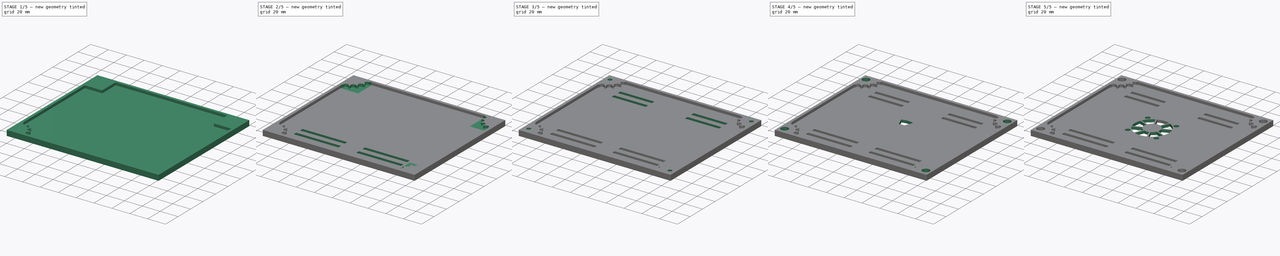
[diagram: build sequence overview — one tinted view per stage of 5, left to right]
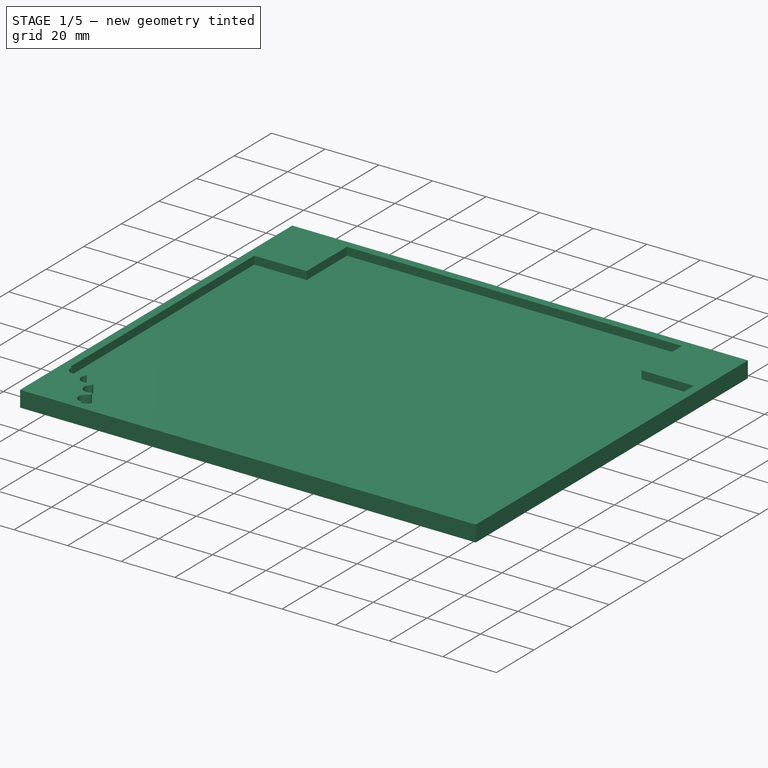
[diagram: stage 1 of 5 — iso view after this stage's code; geometry added in this stage tinted green]
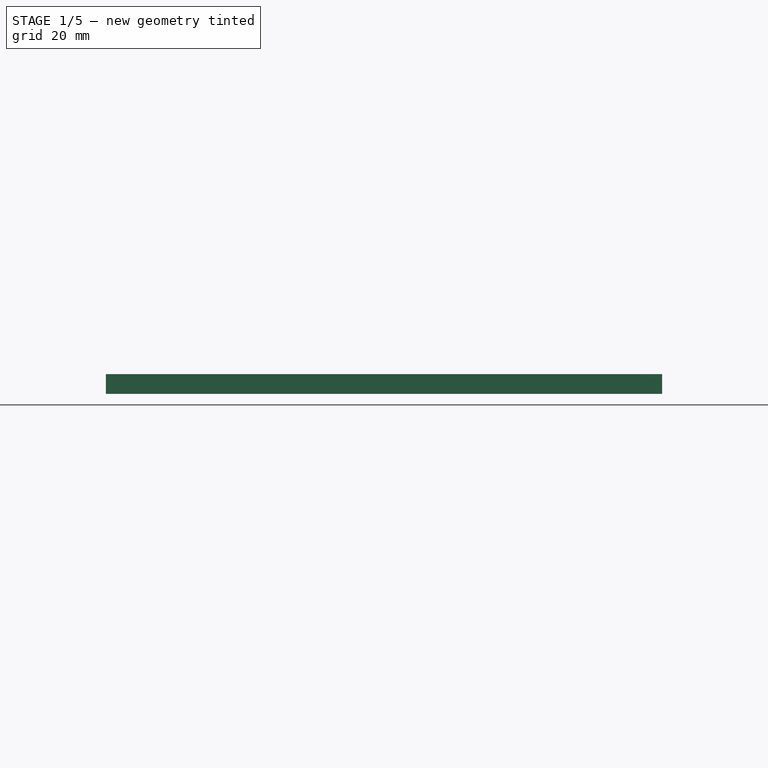
[diagram: stage 1 of 5 — front view after this stage's code; geometry added in this stage tinted green]
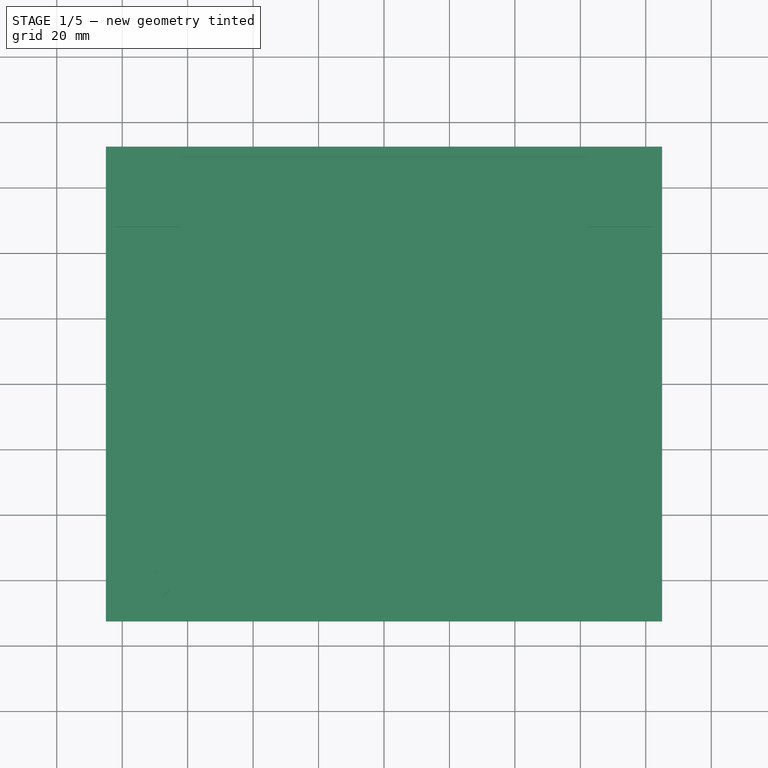
[diagram: stage 1 of 5 — top view after this stage's code; geometry added in this stage tinted green]
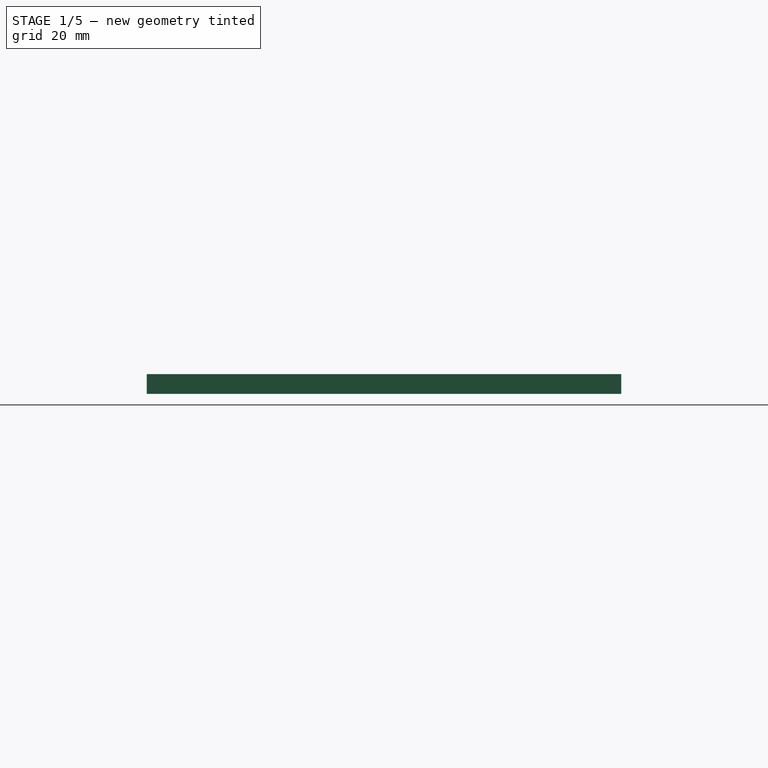
[diagram: stage 1 of 5 — right view after this stage's code; geometry added in this stage tinted green]
FCSTD DOCUMENT
Label: ElectronicEnclosureTopBlank
objects: PartDesign::Mirrored×10, Sketcher::SketchObject×9, PartDesign::Pocket×8, PartDesign::MultiTransform×6, PartDesign::LinearPattern×2, PartDesign::Pad×1, PartDesign::PolarPattern×1, Part::Feature×1
note: 47 computed .brp shape members not serialized (recipe doc carries the construction recipe); baked Part::Feature solids carry a one-line shape summary decoded from their .brp

FEATURE [Sketcher::SketchObject] Sketch
  sketch-geometry (4):
    g0: LineSegment StartX=-85 StartY=72.5 StartZ=0 EndX=85 EndY=72.5 EndZ=0
    g1: LineSegment StartX=85 StartY=72.5 StartZ=0 EndX=85 EndY=-72.5 EndZ=0
    g2: LineSegment StartX=85 StartY=-72.5 StartZ=0 EndX=-85 EndY=-72.5 EndZ=0
    g3: LineSegment StartX=-85 StartY=-72.5 StartZ=0 EndX=-85 EndY=72.5 EndZ=0
  constraints (11):
    c: Coincident(g0,g1)
    c: Coincident(g1,g2)
    c: Coincident(g2,g3)
    c: Coincident(g3,g0)
    c: Horizontal(g0)
    c: Horizontal(g2)
    c: Vertical(g1)
    c: Vertical(g3)
    c: Symmetric(g2,g0,g-1)
    c: DistanceX(g2) = -170
    c: DistanceY(g1) = -145
FEATURE [PartDesign::Pad] Pad
  Length = 6
  Length2 = 100
  Sketch = -> Sketch
  Type = 0
FEATURE [Sketcher::SketchObject] Sketch001
  ExternalGeometry = -> [Pad]
  Placement = pos=(0,0,6) rot=(0,0,1;0rad)
  Support = -> Pad [Face6]
  sketch-geometry (12):
    g0: LineSegment StartX=-62.5 StartY=69.5 StartZ=0 EndX=62.5 EndY=69.5 EndZ=0
    g1: LineSegment StartX=82 StartY=48 StartZ=0 EndX=82 EndY=-48 EndZ=0
    g2: LineSegment StartX=62.5 StartY=-69.5 StartZ=0 EndX=-62.5 EndY=-69.5 EndZ=0
    g3: LineSegment StartX=-82 StartY=-48 StartZ=0 EndX=-82 EndY=48 EndZ=0
    g4: LineSegment StartX=-82 StartY=-48 StartZ=0 EndX=-62.5 EndY=-48 EndZ=0
    g5: LineSegment StartX=-62.5 StartY=-48 StartZ=0 EndX=-62.5 EndY=-69.5 EndZ=0
    g6: LineSegment StartX=-62.5 StartY=69.5 StartZ=0 EndX=-62.5 EndY=48 EndZ=0
    g7: LineSegment StartX=-62.5 StartY=48 StartZ=0 EndX=-82 EndY=48 EndZ=0
    g8: LineSegment StartX=82 StartY=48 StartZ=0 EndX=62.5 EndY=48 EndZ=0
    g9: LineSegment StartX=62.5 StartY=48 StartZ=0 EndX=62.5 EndY=69.5 EndZ=0
    g10: LineSegment StartX=62.5 StartY=-48 StartZ=0 EndX=82 EndY=-48 EndZ=0
    g11: LineSegment StartX=62.5 StartY=-69.5 StartZ=0 EndX=62.5 EndY=-48 EndZ=0
  constraints (36):
    c: Horizontal(g0)
    c: Horizontal(g2)
    c: Vertical(g1)
    c: Vertical(g3)
    c: Coincident(g4,g5)
    c: Horizontal(g4)
    c: Vertical(g5)
    c: Coincident(g6,g7)
    c: Horizontal(g7)
    c: Vertical(g6)
    c: Coincident(g8,g9)
    c: Horizontal(g8)
    c: Vertical(g9)
    c: Coincident(g11,g10)
    c: Horizontal(g10)
    c: Vertical(g11)
    c: Coincident(g0,g9)
    c: Coincident(g1,g8)
    c: Coincident(g0,g6)
    c: Coincident(g3,g7)
    c: Coincident(g3,g4)
    c: Coincident(g2,g5)
    c: Coincident(g2,g11)
    c: Coincident(g1,g10)
    c: Equal(g6,g9)
    c: Equal(g9,g11)
    c: Equal(g11,g5)
    c: Equal(g7,g4)
    c: Equal(g4,g10)
    c: Equal(g10,g8)
    c: Symmetric(g0,g0,g-2)
    c: Symmetric(g3,g3,g-1)
    c: DistanceX(g3,g-3) = -3
    c: DistanceY(g0,g-3) = 3
    c: DistanceY(g-3,g3) = 24.5
    c: DistanceX(g-3,g0) = 22.5
FEATURE [PartDesign::Pocket] Pocket
  Length = 3
  Sketch = -> Sketch001
  Type = 0
FEATURE [Sketcher::SketchObject] Sketch002
  ExternalGeometry = -> [Pocket]
  Placement = pos=(0,0,6) rot=(0,0,1;0rad)
  Support = -> Pocket [Face5]
  sketch-geometry (25):
    g0: LineSegment [constr] StartX=-78.5695 StartY=-50.9332 StartZ=0 EndX=-72.2837 EndY=-54.1542 EndZ=0
    g1: LineSegment [constr] StartX=-72.2837 StartY=-54.1542 StartZ=0 EndX=-67.5596 EndY=-59.4048 EndZ=0
    g2: LineSegment [constr] StartX=-67.5596 StartY=-59.4048 StartZ=0 EndX=-65.0183 EndY=-65.9948 EndZ=0
    g3: LineSegment [constr] StartX=-75.4266 StartY=-52.5437 StartZ=0 EndX=-84.1628 EndY=-69.5926 EndZ=0
    g4: LineSegment [constr] StartX=-66.2889 StartY=-62.6998 StartZ=0 EndX=-84.1628 EndY=-69.5926 EndZ=0
    g5: ArcOfCircle CenterX=-78.5695 CenterY=-50.9332 CenterZ=0 NormalX=0 NormalY=0 NormalZ=1 Radius=2.68 StartAngle=2.85036 EndAngle=5.99195
    g6: ArcOfCircle CenterX=-72.2837 CenterY=-54.1542 CenterZ=0 NormalX=0 NormalY=0 NormalZ=1 Radius=2.68 StartAngle=2.48576 EndAngle=5.62735
    g7: ArcOfCircle CenterX=-67.5596 CenterY=-59.4048 CenterZ=0 NormalX=0 NormalY=0 NormalZ=1 Radius=2.68 StartAngle=2.12116 EndAngle=5.26275
    g8: ArcOfCircle CenterX=-65.0183 CenterY=-65.9948 CenterZ=0 NormalX=0 NormalY=0 NormalZ=1 Radius=2.68 StartAngle=1.75656 EndAngle=4.89815
    g9: LineSegment [constr] StartX=-65.5132 StartY=-63.3609 StartZ=0 EndX=-64.5233 EndY=-68.6287 EndZ=0
    g10: LineSegment [constr] StartX=-68.9612 StartY=-57.1205 StartZ=0 EndX=-66.158 EndY=-61.6891 EndZ=0
    g11: LineSegment [constr] StartX=-74.4077 StartY=-52.5199 StartZ=0 EndX=-70.1597 EndY=-55.7885 EndZ=0
    g12: LineSegment [constr] StartX=-81.1366 StartY=-50.1637 StartZ=0 EndX=-76.0023 EndY=-51.7027 EndZ=0
    g13: LineSegment [constr] StartX=-76.0023 StartY=-51.7027 StartZ=0 EndX=-74.4077 EndY=-52.5199 EndZ=0
    g14: LineSegment [constr] StartX=-70.1597 StartY=-55.7885 StartZ=0 EndX=-68.9612 EndY=-57.1205 EndZ=0
    g15: LineSegment [constr] StartX=-66.158 StartY=-61.6891 StartZ=0 EndX=-65.5132 EndY=-63.3609 EndZ=0
    g16: ArcOfCircle CenterX=-75.4565 CenterY=-52.602 CenterZ=0 NormalX=0 NormalY=0 NormalZ=1 Radius=1.052 StartAngle=0.0781836 EndAngle=2.11634
    g17: ArcOfCircle CenterX=-69.9704 CenterY=-56.8233 CenterZ=0 NormalX=0 NormalY=0 NormalZ=1 Radius=1.052 StartAngle=5.99677 EndAngle=8.03492
    g18: ArcOfCircle CenterX=-66.3501 CenterY=-62.7234 CenterZ=0 NormalX=0 NormalY=0 NormalZ=1 Radius=1.052 StartAngle=5.63217 EndAngle=7.67032
    g19: ArcOfCircle CenterX=-84.1628 CenterY=-69.5926 CenterZ=0 NormalX=0 NormalY=0 NormalZ=1 Radius=19.6631 StartAngle=1.41628 EndAngle=1.46058
    g20: ArcOfCircle CenterX=-84.1628 CenterY=-69.5926 CenterZ=0 NormalX=0 NormalY=0 NormalZ=1 Radius=19.6631 StartAngle=0.00470771 EndAngle=0.0490408
    g21: LineSegment StartX=-82 StartY=-50.0487 StartZ=0 EndX=-82 EndY=-48 EndZ=0
    g22: LineSegment StartX=-82 StartY=-48 StartZ=0 EndX=-62.5 EndY=-48 EndZ=0
    g23: LineSegment StartX=-62.5 StartY=-48 StartZ=0 EndX=-62.5 EndY=-69.5 EndZ=0
    g24: LineSegment StartX=-64.4999 StartY=-69.5 StartZ=0 EndX=-62.5 EndY=-69.5 EndZ=0
  constraints (69):
    c: Coincident(g0,g1)
    c: Coincident(g1,g2)
    c: Equal(g2,g1)
    c: Equal(g1,g0)
    c: Angle(g0,g1) = 2.77699
    c: Angle(g1,g2) = 2.77699
    c: Distance(g1) = 7.063
    c: Symmetric(g0,g0,g3)
    c: Symmetric(g2,g2,g4)
    c: Coincident(g4,g3)
    c: Perpendicular(g3,g0)
    c: Coincident(g5,g0)
    c: Radius(g5) = 2.68
    c: Coincident(g6,g0)
    c: Coincident(g7,g1)
    c: Coincident(g8,g2)
    c: Equal(g7,g8)
    c: Equal(g8,g6)
    c: Equal(g6,g5)
    c: Equal(g4,g3)
    c: PointOnObject(g2,g9)
    c: PointOnObject(g1,g10)
    c: PointOnObject(g0,g11)
    c: PointOnObject(g0,g12)
    c: Coincident(g8,g9)
    c: Coincident(g8,g9)
    c: Coincident(g7,g10)
    c: Coincident(g7,g10)
    c: Coincident(g6,g11)
    c: Coincident(g6,g11)
    c: Coincident(g5,g12)
    c: Coincident(g5,g12)
    c: Coincident(g13,g5)
    c: Coincident(g13,g6)
    c: Coincident(g14,g6)
    c: Coincident(g14,g7)
    c: Coincident(g15,g7)
    c: Coincident(g15,g8)
    c: Equal(g13,g14)
    c: Equal(g14,g15)
    c: Parallel(g14,g1)
    c: Parallel(g15,g2)
    c: Equal(g16,g17)
    c: Equal(g17,g18)
    c: Coincident(g18,g7)
    c: Coincident(g18,g8)
    c: Radius(g18) = 1.052
    c: Coincident(g17,g6)
    c: Coincident(g17,g7)
    c: Coincident(g16,g5)
    c: Coincident(g16,g6)
    c: DistanceX(g-3,g3) = 0.83722
    c: DistanceY(g-3,g3) = 2.90743
    c: Coincident(g19,g3)
    c: Coincident(g19,g5)
    c: Coincident(g20,g3)
    c: Coincident(g20,g8)
    c: Coincident(g19,g21)
    c: Vertical(g21)
    c: Coincident(g22,g23)
    c: Vertical(g23)
    c: Coincident(g24,g20)
    c: Coincident(g24,g23)
    c: Horizontal(g24)
    c: Horizontal(g22)
    c: Coincident(g22,g21)
    c: Coincident(g23,g-5)
    c: Coincident(g21,g-4)
    c: Distance(g19,g5) = 0.871
FEATURE [PartDesign::Pocket] Pocket001
  Length = 3
  Sketch = -> Sketch002
  Type = 0
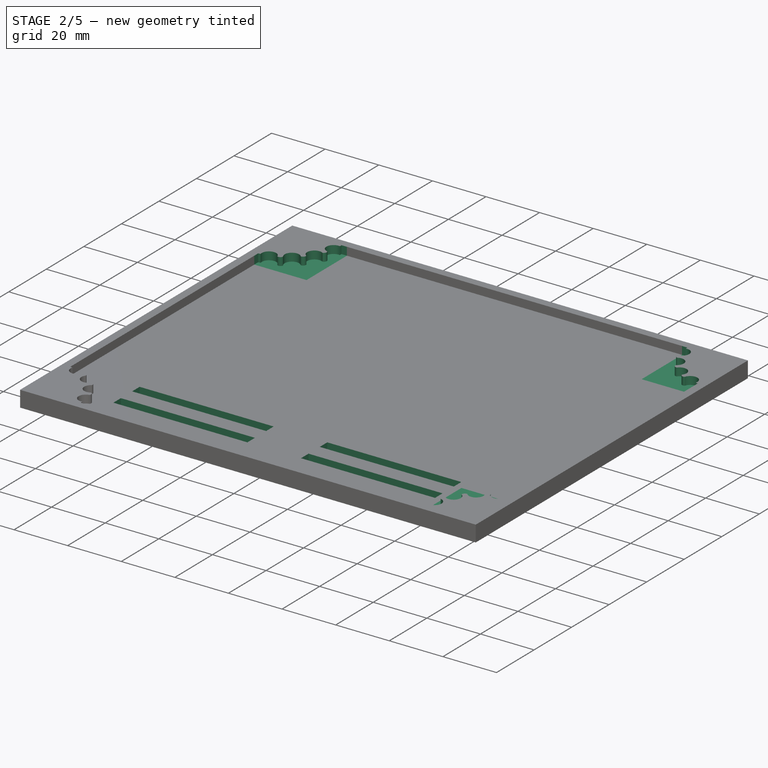
[diagram: stage 2 of 5 — iso view after this stage's code; geometry added in this stage tinted green]
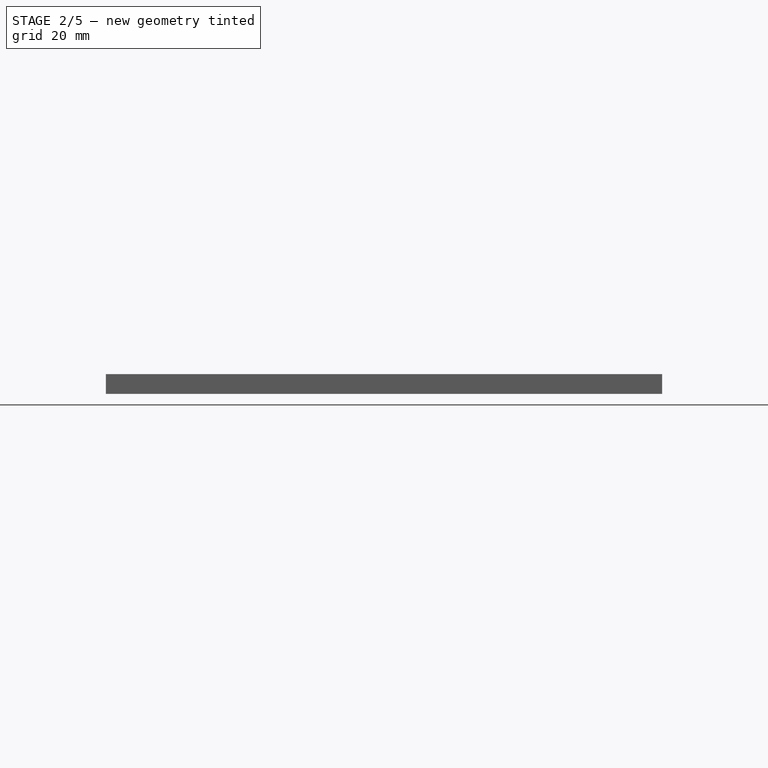
[diagram: stage 2 of 5 — front view after this stage's code; geometry added in this stage tinted green]
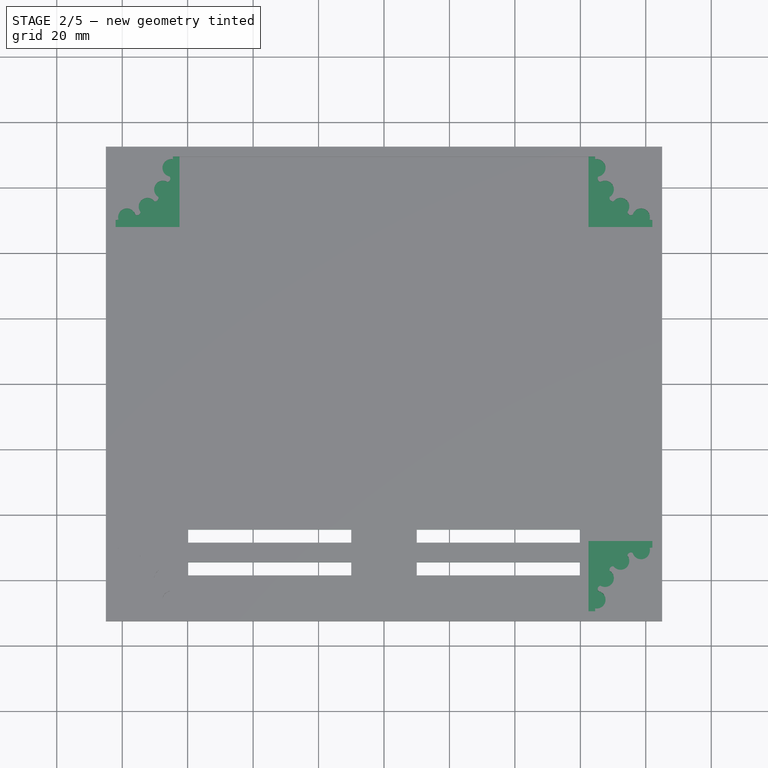
[diagram: stage 2 of 5 — top view after this stage's code; geometry added in this stage tinted green]
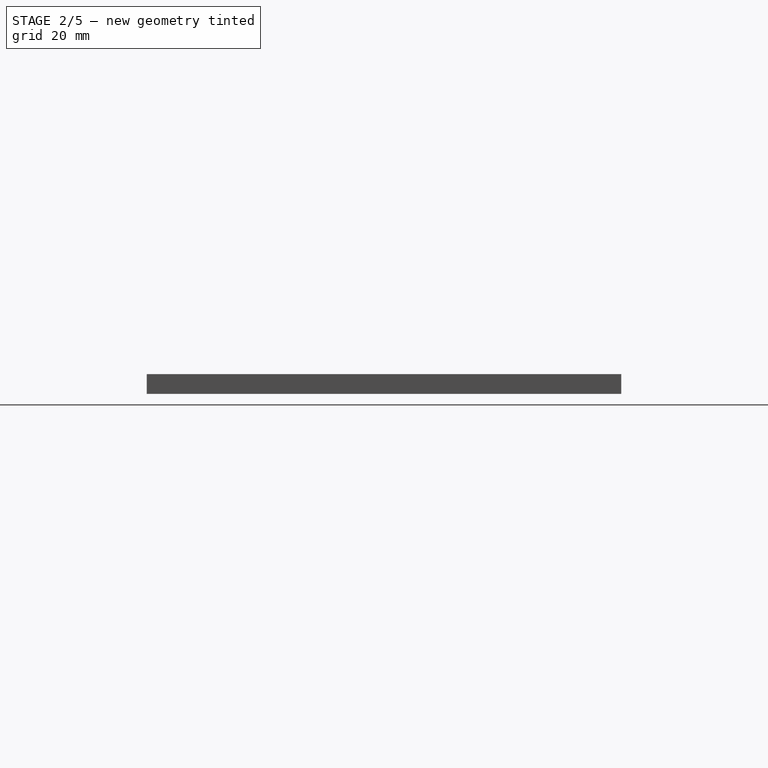
[diagram: stage 2 of 5 — right view after this stage's code; geometry added in this stage tinted green]
FEATURE [PartDesign::Mirrored] Mirrored
  StdMirrorPlane = YZ
FEATURE [PartDesign::Mirrored] Mirrored001
  StdMirrorPlane = XZ
FEATURE [PartDesign::MultiTransform] MultiTransform
  Originals = -> [Pocket001]
  Transformations = -> [Mirrored,Mirrored001]
FEATURE [Sketcher::SketchObject] Sketch003
  ExternalGeometry = -> [MultiTransform]
  Placement = pos=(0,0,3) rot=(0,0,1;0rad)
  Support = -> MultiTransform [Face55]
  sketch-geometry (4):
    g0: LineSegment StartX=-60 StartY=-58.5 StartZ=0 EndX=-10 EndY=-58.5 EndZ=0
    g1: LineSegment StartX=-10 StartY=-58.5 StartZ=0 EndX=-10 EndY=-54.5 EndZ=0
    g2: LineSegment StartX=-10 StartY=-54.5 StartZ=0 EndX=-60 EndY=-54.5 EndZ=0
    g3: LineSegment StartX=-60 StartY=-54.5 StartZ=0 EndX=-60 EndY=-58.5 EndZ=0
  constraints (12):
    c: Coincident(g0,g1)
    c: Coincident(g1,g2)
    c: Coincident(g2,g3)
    c: Coincident(g3,g0)
    c: Horizontal(g0)
    c: Horizontal(g2)
    c: Vertical(g1)
    c: Vertical(g3)
    c: DistanceX(g2) = -50
    c: DistanceY(g1) = 4
    c: DistanceY(g-3,g0) = 11
    c: DistanceX(g0) = -10
FEATURE [PartDesign::Pocket] Pocket002
  Length = 5
  Sketch = -> Sketch003
  Type = 1
FEATURE [PartDesign::LinearPattern] LinearPattern
  Direction = -> Pocket002 [Edge7]
  Length = 10
  Occurrences = 2
FEATURE [PartDesign::Mirrored] Mirrored002
  StdMirrorPlane = YZ
FEATURE [PartDesign::MultiTransform] MultiTransform001
  Originals = -> [Pocket002]
  Transformations = -> [LinearPattern,Mirrored002]
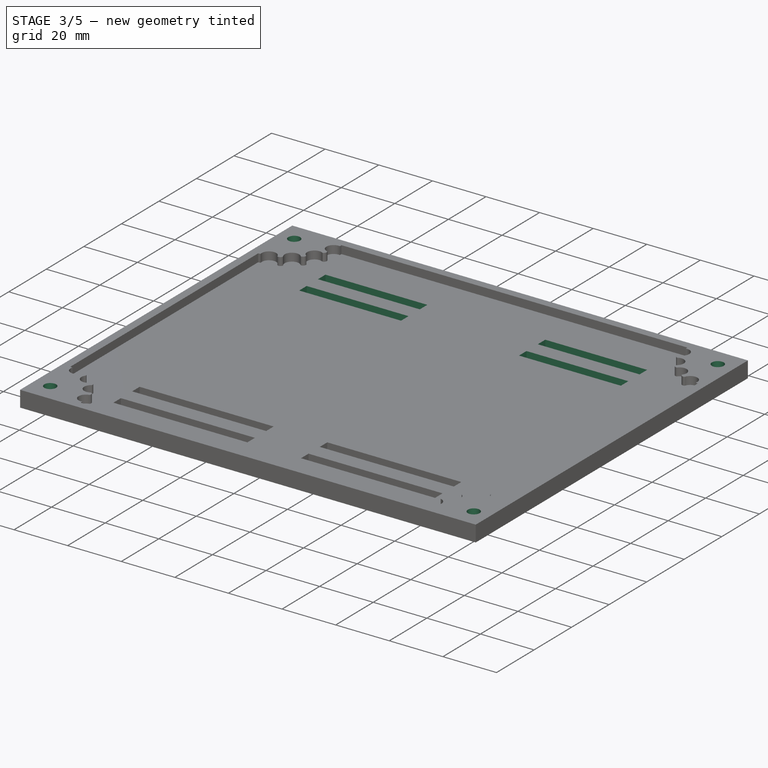
[diagram: stage 3 of 5 — iso view after this stage's code; geometry added in this stage tinted green]
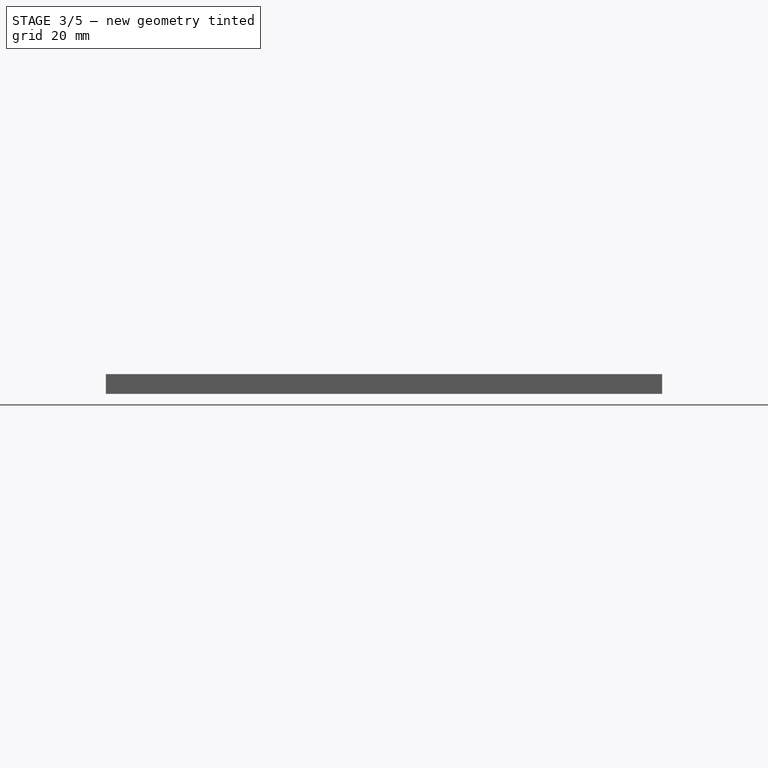
[diagram: stage 3 of 5 — front view after this stage's code; geometry added in this stage tinted green]
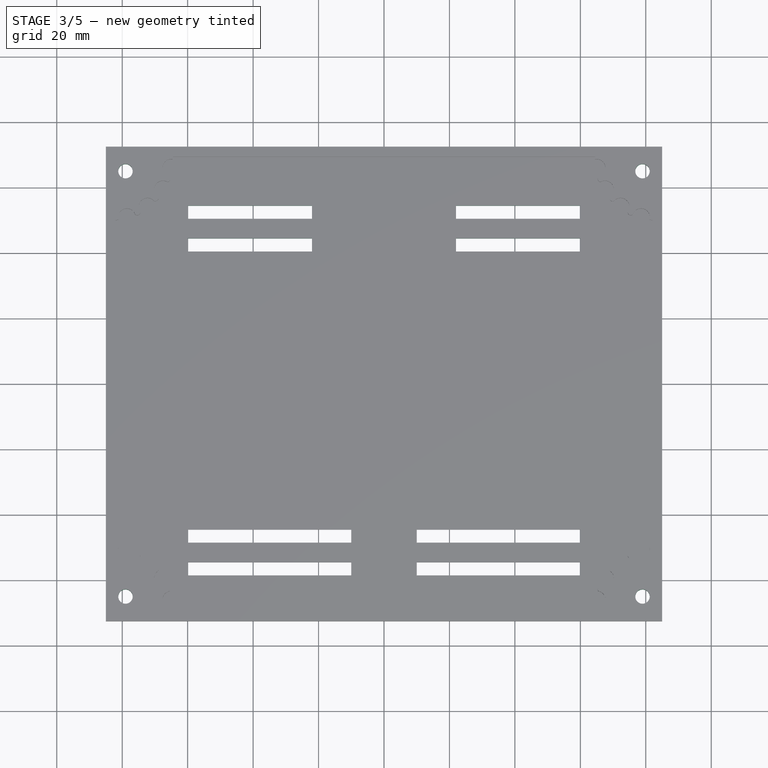
[diagram: stage 3 of 5 — top view after this stage's code; geometry added in this stage tinted green]
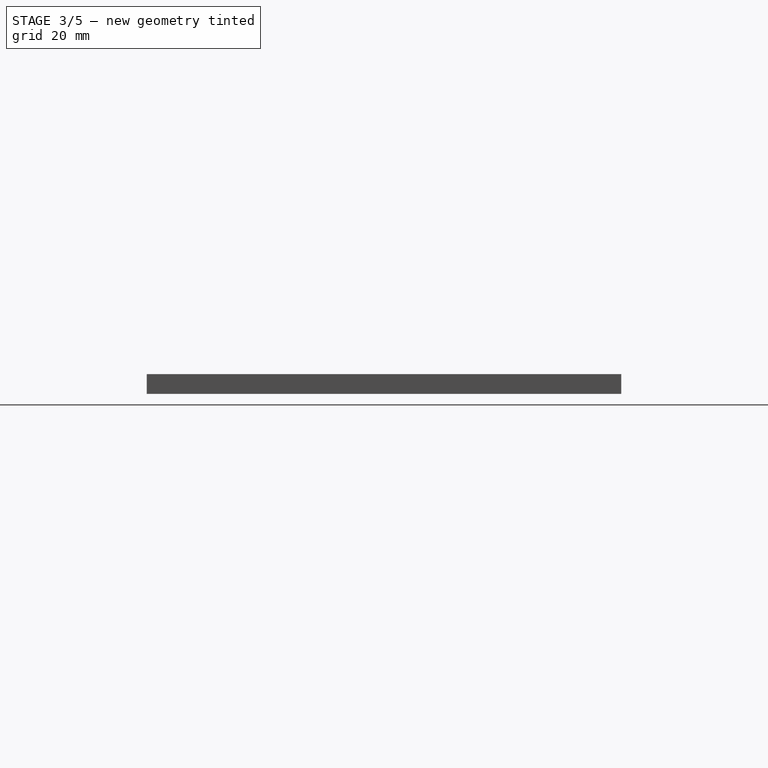
[diagram: stage 3 of 5 — right view after this stage's code; geometry added in this stage tinted green]
FEATURE [Sketcher::SketchObject] Sketch004
  ExternalGeometry = -> [MultiTransform001]
  Placement = pos=(0,0,3) rot=(0,0,1;0rad)
  Support = -> MultiTransform001 [Face71]
  sketch-geometry (4):
    g0: LineSegment StartX=-60 StartY=54.5 StartZ=0 EndX=-22 EndY=54.5 EndZ=0
    g1: LineSegment StartX=-22 StartY=54.5 StartZ=0 EndX=-22 EndY=50.5 EndZ=0
    g2: LineSegment StartX=-22 StartY=50.5 StartZ=0 EndX=-60 EndY=50.5 EndZ=0
    g3: LineSegment StartX=-60 StartY=50.5 StartZ=0 EndX=-60 EndY=54.5 EndZ=0
  constraints (12):
    c: Coincident(g0,g1)
    c: Coincident(g1,g2)
    c: Coincident(g2,g3)
    c: Coincident(g3,g0)
    c: Horizontal(g0)
    c: Horizontal(g2)
    c: Vertical(g1)
    c: Vertical(g3)
    c: DistanceX(g0) = 38
    c: DistanceY(g3) = 4
    c: PointOnObject(g-3,g3)
    c: DistanceY(g0,g-4) = 15
FEATURE [PartDesign::Pocket] Pocket003
  Length = 5
  Sketch = -> Sketch004
  Type = 1
FEATURE [PartDesign::LinearPattern] LinearPattern001
  Direction = -> Pocket003 [Edge7]
  Length = 10
  Occurrences = 2
  Reversed = true
FEATURE [PartDesign::Mirrored] Mirrored003
  StdMirrorPlane = YZ
FEATURE [PartDesign::MultiTransform] MultiTransform002
  Originals = -> [Pocket003]
  Transformations = -> [LinearPattern001,Mirrored003]
FEATURE [Sketcher::SketchObject] Sketch005
  ExternalGeometry = -> [MultiTransform002]
  Placement = pos=(0,0,6) rot=(0,0,1;0rad)
  Support = -> MultiTransform002 [Face5]
  sketch-geometry (1):
    g0: Circle CenterX=-79 CenterY=-65 CenterZ=0 NormalX=0 NormalY=0 NormalZ=1 Radius=2.2
  constraints (3):
    c: Radius(g0) = 2.2
    c: DistanceX(g-3,g0) = 6
    c: DistanceY(g-3,g0) = 7.5
FEATURE [PartDesign::Pocket] Pocket004
  Length = 5
  Sketch = -> Sketch005
  Type = 1
FEATURE [PartDesign::Mirrored] Mirrored004
  StdMirrorPlane = YZ
FEATURE [PartDesign::Mirrored] Mirrored005
  StdMirrorPlane = XZ
FEATURE [PartDesign::MultiTransform] MultiTransform003
  Originals = -> [Pocket004]
  Transformations = -> [Mirrored004,Mirrored005]
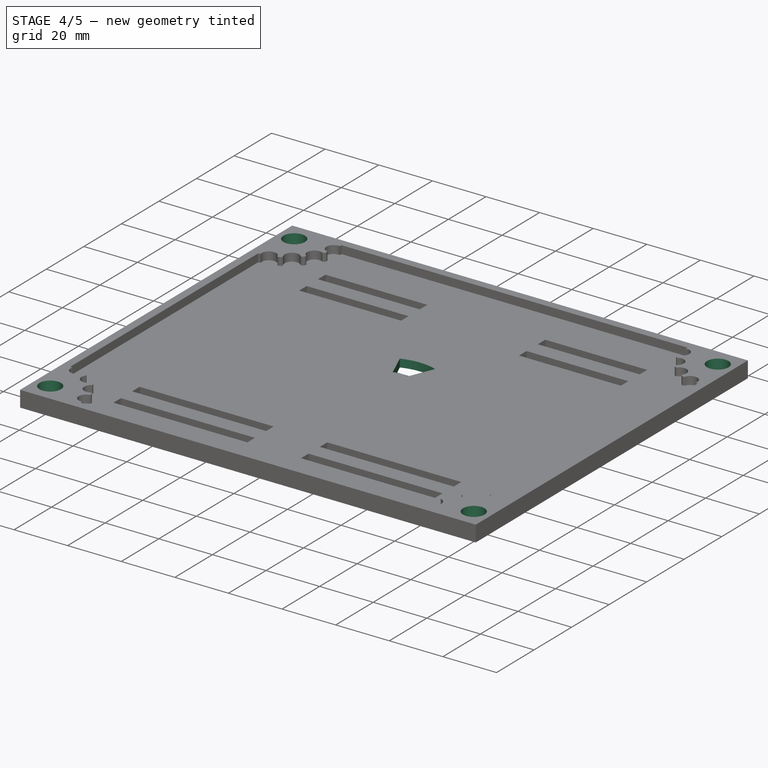
[diagram: stage 4 of 5 — iso view after this stage's code; geometry added in this stage tinted green]
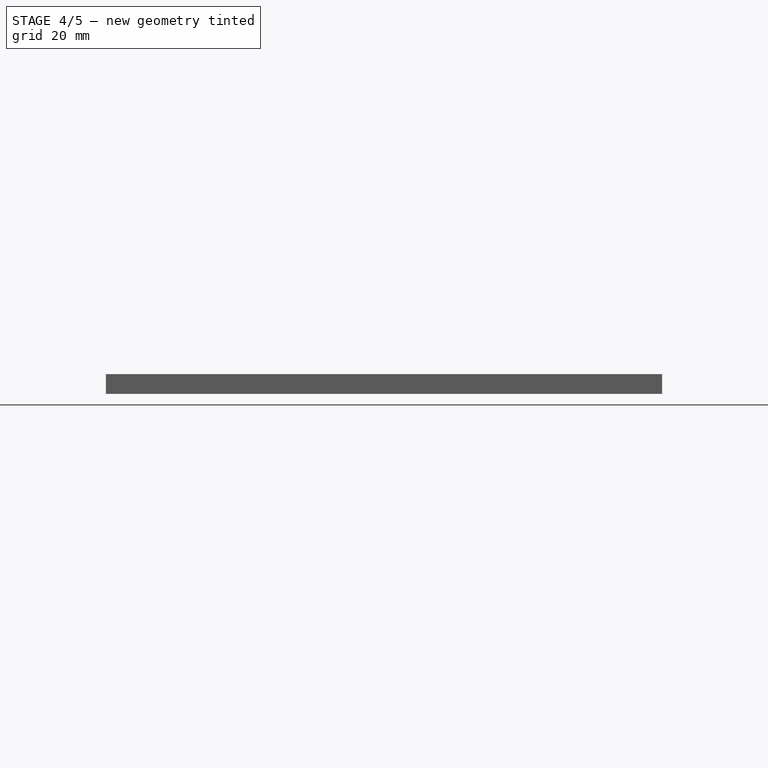
[diagram: stage 4 of 5 — front view after this stage's code; geometry added in this stage tinted green]
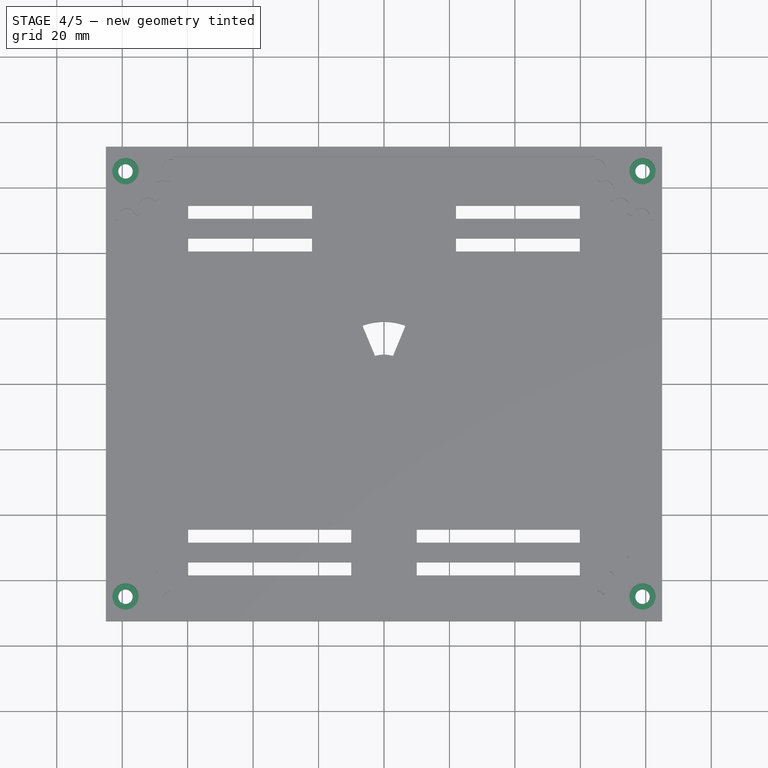
[diagram: stage 4 of 5 — top view after this stage's code; geometry added in this stage tinted green]
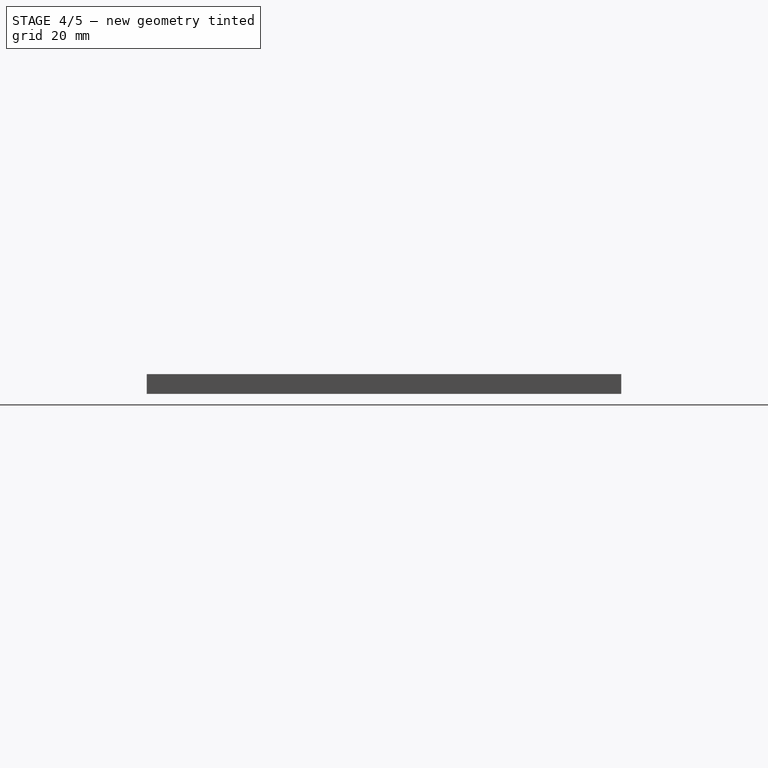
[diagram: stage 4 of 5 — right view after this stage's code; geometry added in this stage tinted green]
FEATURE [Sketcher::SketchObject] Sketch006
  ExternalGeometry = -> [MultiTransform003]
  Placement = pos=(0,0,6) rot=(0,0,1;0rad)
  Support = -> MultiTransform003 [Face5]
  sketch-geometry (1):
    g0: Circle CenterX=-79 CenterY=-65 CenterZ=0 NormalX=0 NormalY=0 NormalZ=1 Radius=4
  constraints (2):
    c: Coincident(g0,g-3)
    c: Radius(g0) = 4
FEATURE [PartDesign::Pocket] Pocket005
  Length = 4
  Sketch = -> Sketch006
  Type = 0
FEATURE [PartDesign::Mirrored] Mirrored006
  StdMirrorPlane = YZ
FEATURE [PartDesign::Mirrored] Mirrored007
  StdMirrorPlane = XZ
FEATURE [PartDesign::MultiTransform] MultiTransform004
  Originals = -> [Pocket005]
  Transformations = -> [Mirrored006,Mirrored007]
FEATURE [Sketcher::SketchObject] Sketch007
  Placement = pos=(0,0,3) rot=(0,0,1;0rad)
  Support = -> MultiTransform004 [Face99]
  sketch-geometry (6):
    g0: ArcOfCircle CenterX=0 CenterY=0 CenterZ=0 NormalX=0 NormalY=0 NormalZ=1 Radius=9 StartAngle=1.26153 EndAngle=1.88007
    g1: ArcOfCircle CenterX=0 CenterY=0 CenterZ=0 NormalX=0 NormalY=0 NormalZ=1 Radius=19 StartAngle=1.21758 EndAngle=1.92401
    g2: LineSegment [constr] StartX=0 StartY=0 StartZ=0 EndX=-7.2761 EndY=17.5661 EndZ=0
    g3: LineSegment [constr] StartX=0 StartY=0 StartZ=0 EndX=7.2761 EndY=17.5661 EndZ=0
    g4: LineSegment StartX=-6.57241 StartY=17.827 StartZ=0 EndX=-2.73926 EndY=8.57301 EndZ=0
    g5: LineSegment StartX=6.57241 StartY=17.827 StartZ=0 EndX=2.73926 EndY=8.57301 EndZ=0
  constraints (18):
    c: Coincident(g0,g-1)
    c: Coincident(g1,g-1)
    c: Coincident(g2,g-1)
    c: Coincident(g3,g-1)
    c: Coincident(g4,g1)
    c: Coincident(g4,g0)
    c: Coincident(g5,g1)
    c: Coincident(g5,g0)
    c: Symmetric(g1,g1,g-2)
    c: Parallel(g2,g4)
    c: Parallel(g5,g3)
    c: Distance(g1,g2) = 0.75
    c: Symmetric(g0,g0,g-2)
    c: Radius(g0) = 9
    c: Radius(g1) = 19
    c: Angle(g3,g2) = 0.785398
    c: Equal(g3,g2)
    c: DistanceY(g3) = 17.5661
FEATURE [PartDesign::Pocket] Pocket006
  Length = 5
  Sketch = -> Sketch007
  Type = 1
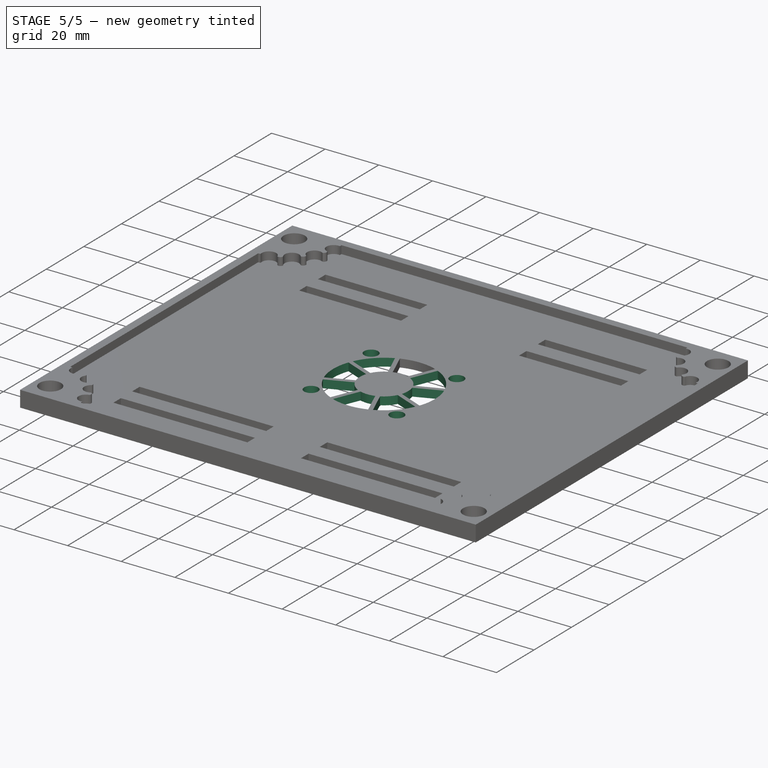
[diagram: stage 5 of 5 — iso view after this stage's code; geometry added in this stage tinted green]
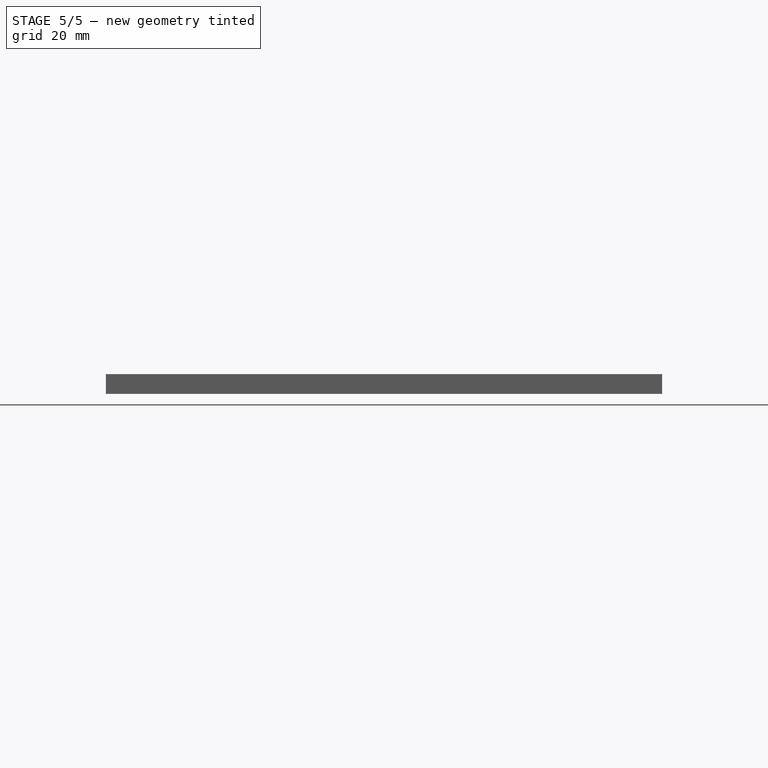
[diagram: stage 5 of 5 — front view after this stage's code; geometry added in this stage tinted green]
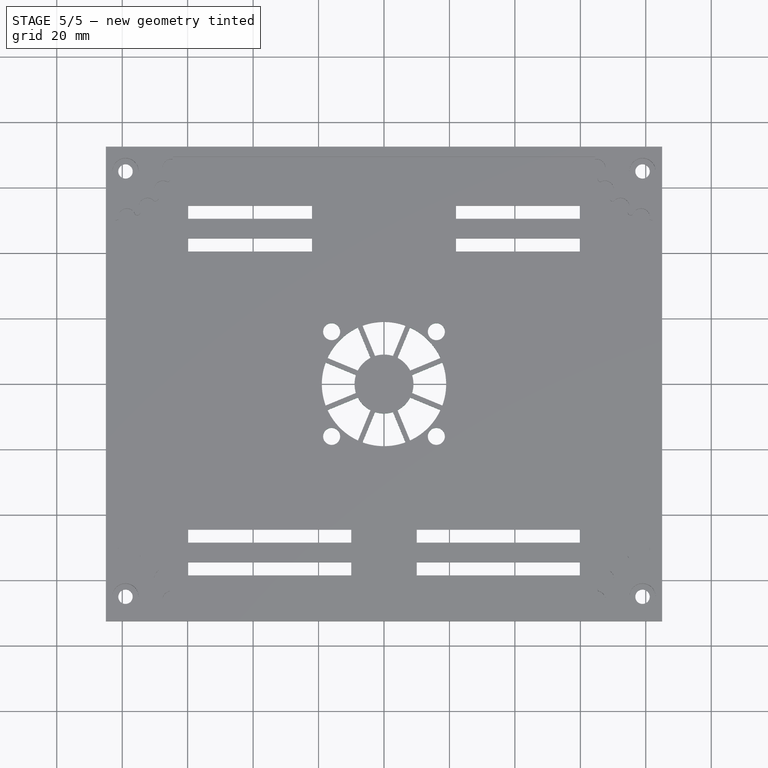
[diagram: stage 5 of 5 — top view after this stage's code; geometry added in this stage tinted green]
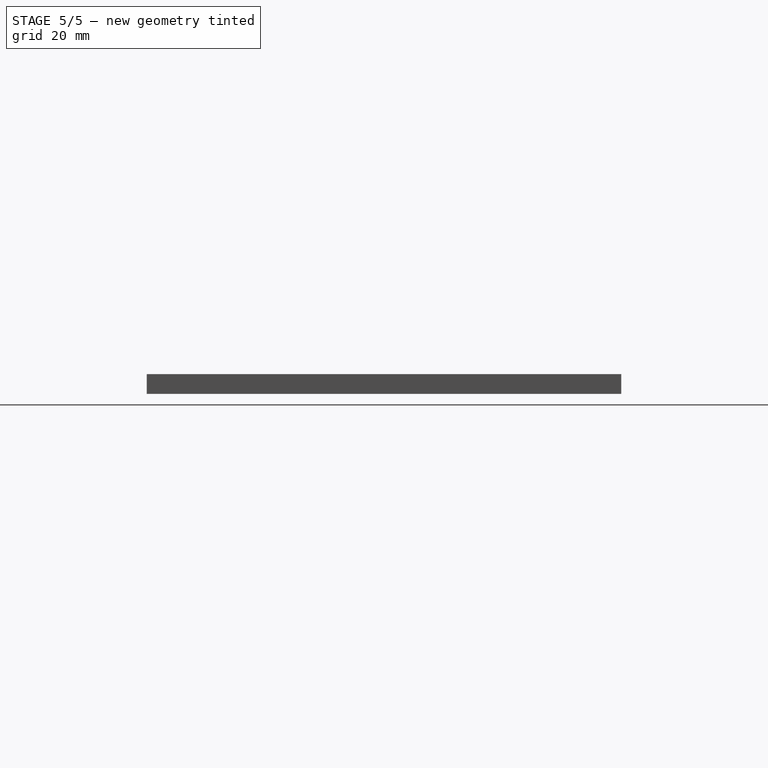
[diagram: stage 5 of 5 — right view after this stage's code; geometry added in this stage tinted green]
FEATURE [PartDesign::PolarPattern] PolarPattern
  Angle = 360
  Occurrences = 8
  Originals = -> [Pocket006]
  StdAxis = Z
FEATURE [Sketcher::SketchObject] Sketch008
  Placement = pos=(0,0,3) rot=(0,0,1;0rad)
  Support = -> PolarPattern [Face127]
  sketch-geometry (1):
    g0: Circle CenterX=-16 CenterY=-16 CenterZ=0 NormalX=0 NormalY=0 NormalZ=1 Radius=2.6
  constraints (3):
    c: Radius(g0) = 2.6
    c: DistanceX(g0) = -16
    c: DistanceY(g0) = -16
FEATURE [PartDesign::Pocket] Pocket007
  Length = 5
  Sketch = -> Sketch008
  Type = 1
FEATURE [PartDesign::Mirrored] Mirrored008
  StdMirrorPlane = YZ
FEATURE [PartDesign::Mirrored] Mirrored009
  StdMirrorPlane = XZ
FEATURE [PartDesign::MultiTransform] MultiTransform005
  Originals = -> [Pocket007]
  Transformations = -> [Mirrored008,Mirrored009]
FEATURE [Part::Feature] MultiTransform005001  label="PartRefine"
  shape: bbox 170 x 145 x 6 mm, 127 faces (baked)
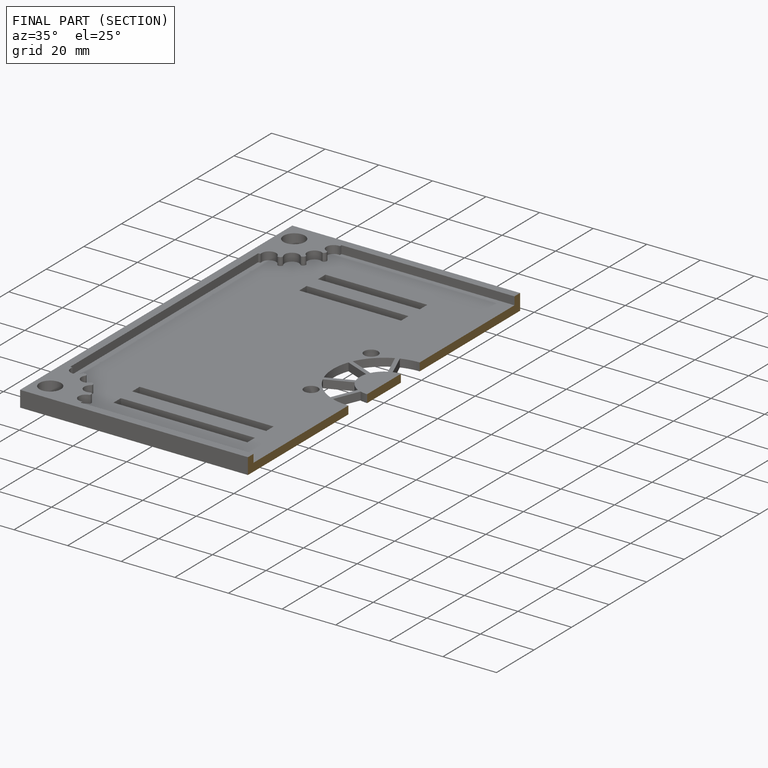
[diagram: finished part — half-section view (interior)]
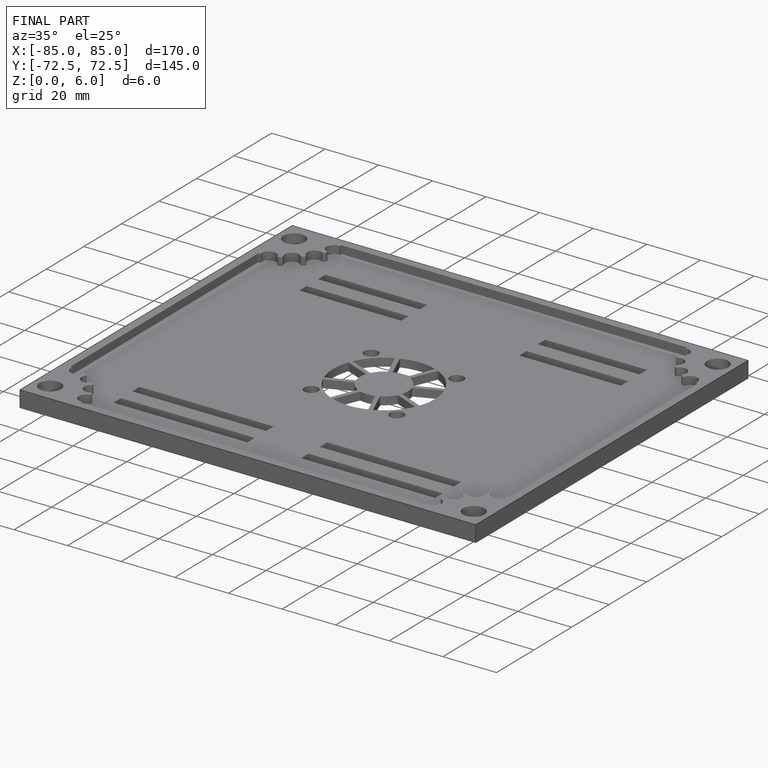
[diagram: finished part — iso view with bounding-box wireframe]
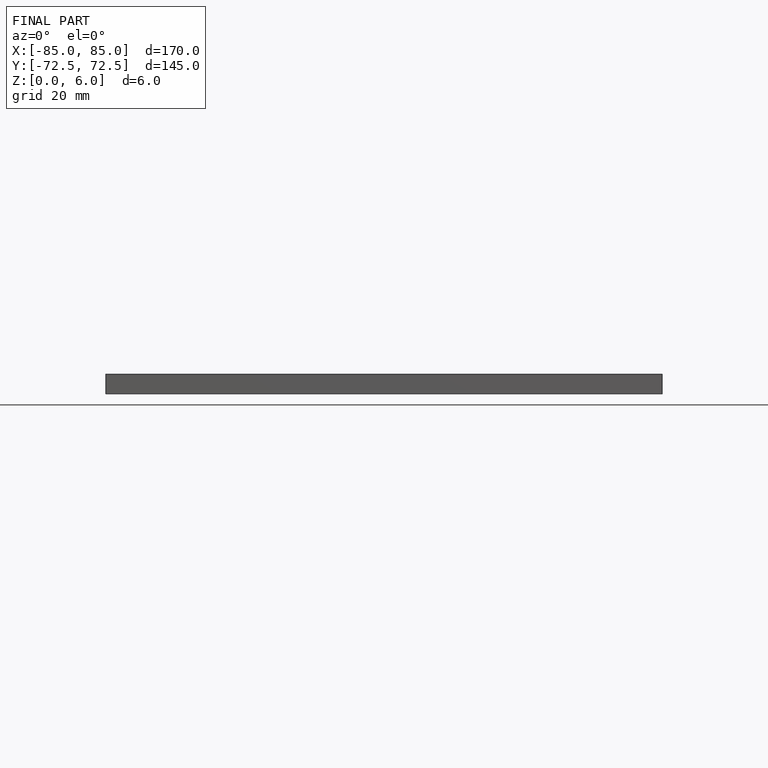
[diagram: finished part — front view with bounding-box wireframe]
